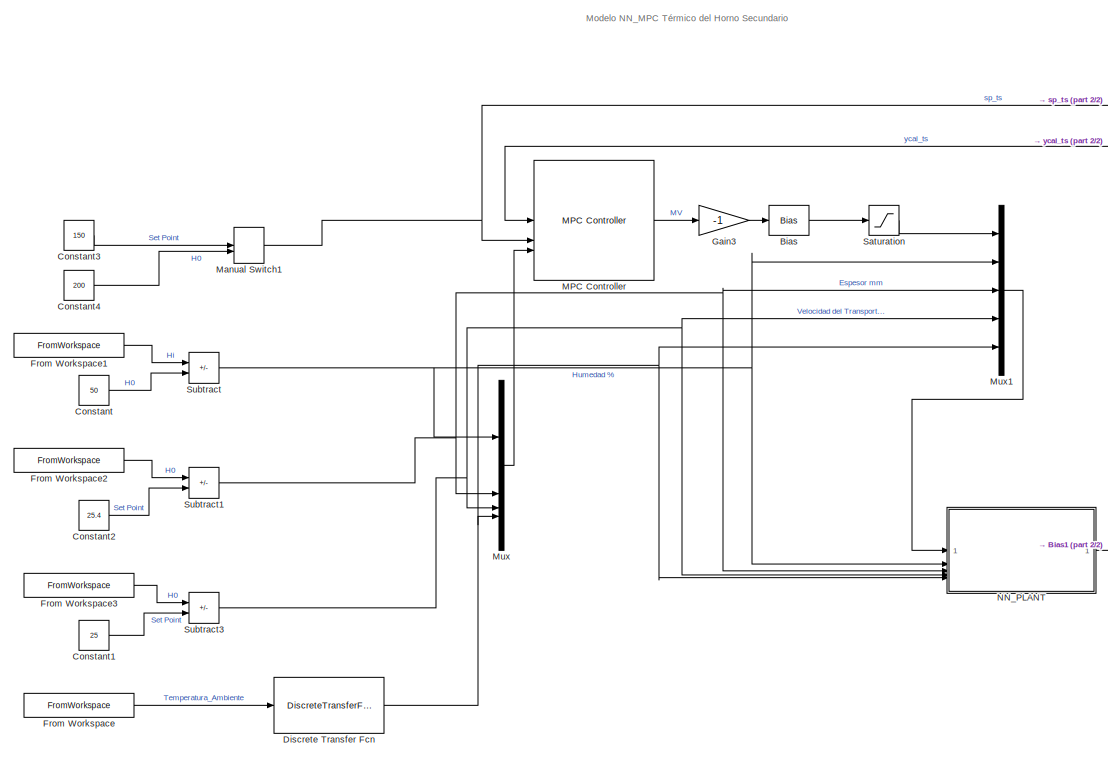
[diagram: root canvas - part 1/2, center side, full height]
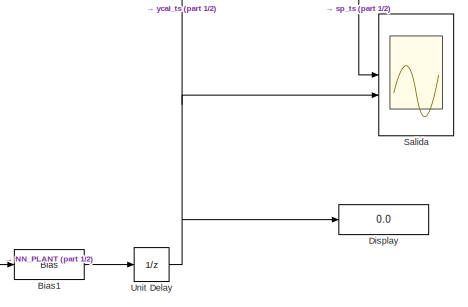
[diagram: root canvas - part 2/2, middle right region]
MODEL slx_660e2df7eb1f
KIND model
CONFIG AbsTol = auto
CONFIG EnableMultiTasking = off
CONFIG FixedStep = auto
CONFIG MaxStep = auto
CONFIG MinStep = auto
CONFIG RelTol = 1e-3
CONFIG SampleTimeConstraint = Unconstrained
CONFIG SolverName = FixedStepDiscrete
CONFIG StartTime = 0.0
CONFIG StopTime = 8000
BLOCK [Bias] Bias
  Bias = 1
  SaturateOnIntegerOverflow = off
BLOCK [Bias] Bias1
  Bias = BIAS_NN
  SaturateOnIntegerOverflow = off
BLOCK [Constant] Constant
  Value = 50
BLOCK [Constant] Constant1
  Value = 25
BLOCK [Constant] Constant2
  Value = 25.4
BLOCK [Constant] Constant3
  Value = 150
BLOCK [Constant] Constant4
  Value = 200
BLOCK [DiscreteTransferFcn] Discrete Transfer Fcn
  CloseFcn = dspblkCoreblockFVToolHelper(gcbh,'close');
  CopyFcn = dspblkCoreblockFVToolHelper(gcbh,'copy');
  DeleteFcn = dspblkCoreblockFVToolHelper(gcbh,'close');
  Denominator = [1 -0.9950]
  InputPortMap = u0
  LoadFcn = dspblkCoreblockFVToolHelper(gcbh,'load');
  ModelCloseFcn = dspblkCoreblockFVToolHelper(gcbh,'close');
  Numerator = [0 0.0050]
  PostSaveFcn = dspblkCoreblockFVToolHelper(gcbh,'postsave');
  PreSaveFcn = dspblkCoreblockFVToolHelper(gcbh,'presave');
BLOCK [Display] Display
  Decimation = 2
  NameLocation = top
BLOCK [FromWorkspace] From Workspace
  OutputAfterFinalValue = Holding final value
  VariableName = deltaTempAmb_s
BLOCK [FromWorkspace] From Workspace1
  OutputAfterFinalValue = Holding final value
  VariableName = humedad_s
BLOCK [FromWorkspace] From Workspace2
  OutputAfterFinalValue = Holding final value
  VariableName = espesor_s
BLOCK [FromWorkspace] From Workspace3
  OutputAfterFinalValue = Holding final value
  VariableName = velocidad_s
BLOCK [Gain] Gain3
  Gain = -1
BLOCK [Reference] MPC Controller  REF=mpclib/MPC Controller  (lib defined in mdl_ae329e0e0455)
  SCDEnableBlockLinearizationSpecification = on
  SourceBlock = mpclib/MPC Controller
  SourceType = MPC
BLOCK [ManualSwitch] Manual Switch1
  CurrentSetting = 0
BLOCK [Mux] Mux
  DisplayOption = bar
BLOCK [Mux] Mux1
  DisplayOption = bar
  Inputs = 5
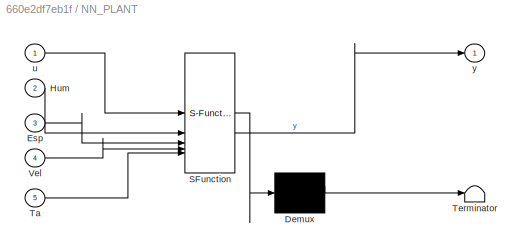
BLOCK [SubSystem] NN_PLANT
  ErrorFcn = Stateflow.Translate.translate
  PermitHierarchicalResolution = ExplicitOnly
  SFBlockType = MATLAB Function
  TreatAsAtomicUnit = on
BLOCK [Demux] NN_PLANT/ Demux 
  Outputs = 1
BLOCK [S-Function] NN_PLANT/ SFunction 
  EnableBusSupport = off
  FunctionName = sf_sfun
  PortCounts = [5 2]
  SFcnIsStateOwnerBlock = off
  SFunctionDeploymentMode = off
  Tag = Stateflow S-Function 2
BLOCK [Terminator] NN_PLANT/ Terminator 
BLOCK [Inport] NN_PLANT/Esp
  Port = 3
BLOCK [Inport] NN_PLANT/Hum
  Port = 2
BLOCK [Inport] NN_PLANT/Ta
  Port = 5
BLOCK [Inport] NN_PLANT/Vel
  Port = 4
BLOCK [Inport] NN_PLANT/u
BLOCK [Outport] NN_PLANT/y
BLOCK [Scope] Salida
  ActiveDisplayYMaximum = 225
  ActiveDisplayYMinimum = -24.999999999999993
  ContainerLayout = {"WindowBounds":[128,48,1280,768],"gridDimensions":{"w":1,"h":1},"tileCount":1,"tileCoverage":1,"columnWeights":1,"rowWeights":1,"tileOccupancy":{}}
  DataLoggingVariableName = ScopeData2
  DisplayFullPath = on
  Floating = off
  GraphicalSettings = {"Style":{"BackgroundColor":[0.12941176470588237,0.12941176470588237,0.12941176470588237],"AxesColor":[0.07058823529411765,0.07058823529411765,0.07058823529411765],"LabelsColor":[0.8509803921568627,0.8509803921568627,0.8509803921568627],"PreserveColors":false,"Visible":[true,true],"LineStyle":["-","-"],"LineWidth":[1.5,1.5],"BarWidth":[0.9,0.9],"LineColor":["auto","auto"],"LineFaceAlpha":[1,1],"Li...<+2625ch>
  MultipleDisplayCache = [{"MaxYLimMag":225,"MaxYLimReal":225,"MinYLimMag":0,"MinYLimReal":-24.999999999999993,"PlotAsMagnitudePhase":false,"ShowGrid":true,"ShowLegend":true,"Title":"%<SignalLabel>","YLabel":""}]
  NumInputPorts = 2
  ScopeFrameLocation = window
  ShowLegend = on
  WasSavedAsWebScope = on
  WindowPosition = [2.000000,42.000000,1533.000000,791.000000,]
BLOCK [Saturate] Saturation
  LowerLimit = 0
  UpperLimit = 1
BLOCK [Sum] Subtract
  IconShape = rectangular
  Inputs = +-
BLOCK [Sum] Subtract1
  IconShape = rectangular
  Inputs = +-
BLOCK [Sum] Subtract3
  IconShape = rectangular
  Inputs = +-
BLOCK [UnitDelay] Unit Delay
  HasFrameUpgradeWarning = on
  NameLocation = top
ANNOTATION (root): Modelo NN_MPC Térmico del Horno Secundario
LINE Bias1:1 -> Unit Delay:1
LINE Bias:1 -> Saturation:1
LINE Constant1:1 -> Subtract3:2
LINE Constant2:1 -> Subtract1:2
LINE Constant3:1 -> Manual Switch1:1
LINE Constant4:1 -> Manual Switch1:2
LINE Constant:1 -> Subtract:2
NET Discrete Transfer Fcn:1 -> Mux1:5, Mux:4, NN_PLANT:5
LINE From Workspace1:1 -> Subtract:1
LINE From Workspace2:1 -> Subtract1:1
LINE From Workspace3:1 -> Subtract3:1
LINE From Workspace:1 -> Discrete Transfer Fcn:1
LINE Gain3:1 -> Bias:1
LINE MPC Controller:1 -> Gain3:1
NET Manual Switch1:1 -> MPC Controller:2, Salida:1
LINE Mux1:1 -> NN_PLANT:1
LINE Mux:1 -> MPC Controller:3
LINE NN_PLANT:1 -> Bias1:1
LINE Saturation:1 -> Mux1:1
NET Subtract1:1 -> Mux1:3, Mux:2, NN_PLANT:3
NET Subtract3:1 -> Mux1:4, Mux:3, NN_PLANT:4
NET Subtract:1 -> Mux1:2, Mux:1, NN_PLANT:2
NET Unit Delay:1 -> Display:1, MPC Controller:1, Salida:2
note: NET lines group one-source signal fan-out (src -> all destinations, sorted); 1:1 wires keep LINE
CHART NN_PLANT states=1 transitions=1
  STATE_LABEL 'eML_blk_kernel()'
  STATE_LABEL "SCRIPT:\nfunction y = NN_PLANT(u, Hum, Esp, Vel, Ta)\n%#codegen\n% Adapter de la NN a Simulink.\n% Entradas: u en pu (Saturada 0..1), Hum/Esp/Vel/Ta escalares.\n% Salida: y_raw (sin bias). El bias lo aplicas fuera con +BIAS_NN.\n\ncoder.extrinsic('nn_horno_predict');\n\n% fuerza double escalar\nu   = double(u(1));\nHum = double(Hum(1));\nEsp = double(Esp(1));\nVel = double(Vel(1));\nTa  = double(Ta(1));\n\n% segu...<+293ch>"
CHART  states=0 transitions=0
